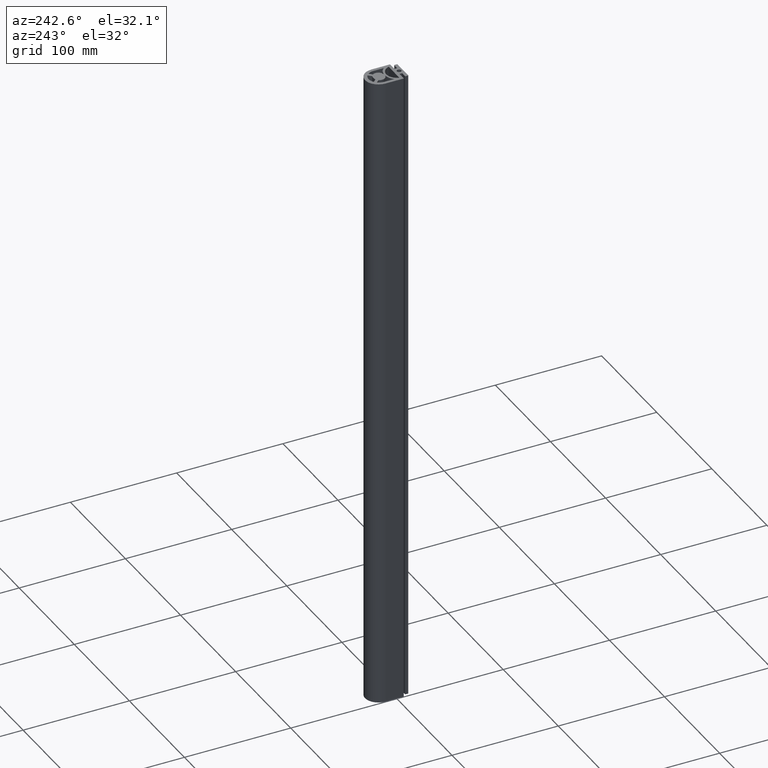
[diagram: clean part render]
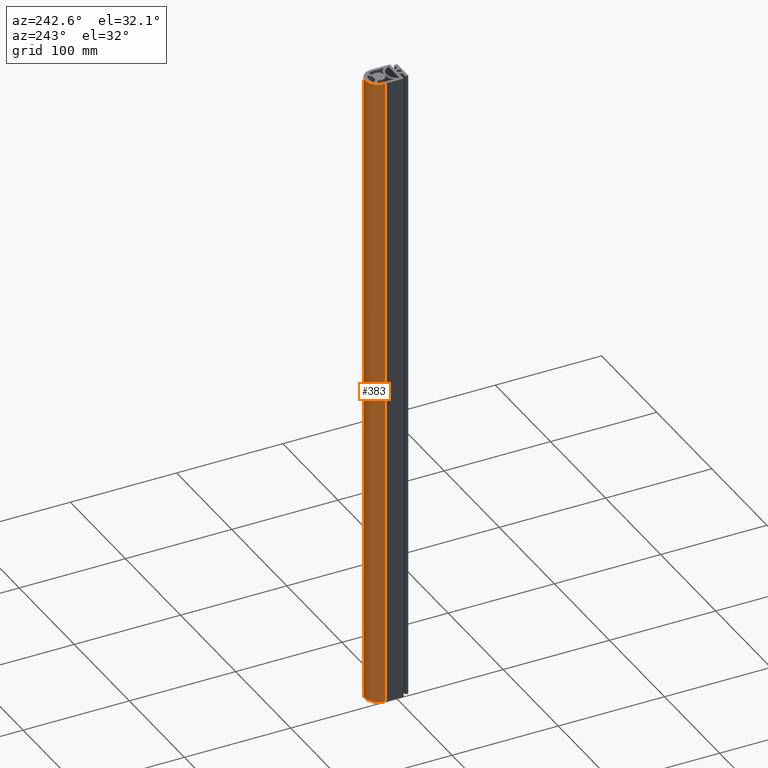
[diagram: same view with one face highlighted and labeled with its STEP entity id]
A machine part, auxiliary view. The second image highlights one B-rep face of the part: STEP entity #383.
In plain terms, the highlighted cylindrical surface (edge-blend (fillet) strip) has radius 12.5 mm, axis along (0, 0, 1).
Its self-contained STEP definition (entity closure, byte-faithful):
#2 = CARTESIAN_POINT ( 'NONE',  ( 12.50000000200000200, 17.49999999845801200, 509.6000000000000800 ) ) ;
#183 = CARTESIAN_POINT ( 'NONE',  ( -12.49999999800000000, 17.49999999845801200, -99.99999999999997200 ) ) ;
#330 = VECTOR ( 'NONE', #1065, 1000.000000000000000 ) ;
#360 = AXIS2_PLACEMENT_3D ( 'NONE', #745, #1250, #1493 ) ;
#381 = CARTESIAN_POINT ( 'NONE',  ( 1.999999992008394400E-009, 17.49999999845801200, -99.99999999999997200 ) ) ;
#383 = ADVANCED_FACE ( 'NONE', ( #1063 ), #570, .T. ) ;
#394 = AXIS2_PLACEMENT_3D ( 'NONE', #1575, #948, #1205 ) ;
#497 = AXIS2_PLACEMENT_3D ( 'NONE', #381, #1497, #1622 ) ;
#566 = CIRCLE ( 'NONE', #360, 12.50000000000000000 ) ;
#570 = CYLINDRICAL_SURFACE ( 'NONE', #394, 12.50000000000000000 ) ;
#573 = VERTEX_POINT ( 'NONE', #629 ) ;
#581 = ORIENTED_EDGE ( 'NONE', *, *, #1007, .F. ) ;
#614 = EDGE_CURVE ( 'NONE', #1425, #634, #566, .T. ) ;
#629 = CARTESIAN_POINT ( 'NONE',  ( 12.50000000200000200, 17.49999999845801200, -99.99999999999997200 ) ) ;
#634 = VERTEX_POINT ( 'NONE', #874 ) ;
#745 = CARTESIAN_POINT ( 'NONE',  ( 1.999999992008394400E-009, 17.49999999845801200, 509.6000000000000800 ) ) ;
#874 = CARTESIAN_POINT ( 'NONE',  ( -12.49999999800000000, 17.49999999845801200, 509.6000000000000800 ) ) ;
#927 = LINE ( 'NONE', #1445, #330 ) ;
#948 = DIRECTION ( 'NONE',  ( 0.0000000000000000000, 0.0000000000000000000, 1.000000000000000000 ) ) ;
#1007 = EDGE_CURVE ( 'NONE', #573, #1425, #1096, .T. ) ;
#1063 = FACE_OUTER_BOUND ( 'NONE', #1102, .T. ) ;
#1065 = DIRECTION ( 'NONE',  ( 0.0000000000000000000, 0.0000000000000000000, 1.000000000000000000 ) ) ;
#1075 = VERTEX_POINT ( 'NONE', #183 ) ;
#1096 = LINE ( 'NONE', #1548, #1571 ) ;
#1102 = EDGE_LOOP ( 'NONE', ( #1278, #581, #1294, #1120 ) ) ;
#1119 = EDGE_CURVE ( 'NONE', #1075, #634, #927, .T. ) ;
#1120 = ORIENTED_EDGE ( 'NONE', *, *, #1119, .T. ) ;
#1173 = DIRECTION ( 'NONE',  ( 0.0000000000000000000, 0.0000000000000000000, 1.000000000000000000 ) ) ;
#1205 = DIRECTION ( 'NONE',  ( 1.000000000000000000, 0.0000000000000000000, 0.0000000000000000000 ) ) ;
#1250 = DIRECTION ( 'NONE',  ( 0.0000000000000000000, 0.0000000000000000000, 1.000000000000000000 ) ) ;
#1278 = ORIENTED_EDGE ( 'NONE', *, *, #614, .F. ) ;
#1294 = ORIENTED_EDGE ( 'NONE', *, *, #1417, .T. ) ;
#1417 = EDGE_CURVE ( 'NONE', #573, #1075, #1449, .T. ) ;
#1425 = VERTEX_POINT ( 'NONE', #2 ) ;
#1445 = CARTESIAN_POINT ( 'NONE',  ( -12.49999999800000000, 17.49999999845801200, -99.99999999999997200 ) ) ;
#1449 = CIRCLE ( 'NONE', #497, 12.50000000000000000 ) ;
#1493 = DIRECTION ( 'NONE',  ( 1.000000000000000000, 0.0000000000000000000, 0.0000000000000000000 ) ) ;
#1497 = DIRECTION ( 'NONE',  ( 0.0000000000000000000, 0.0000000000000000000, 1.000000000000000000 ) ) ;
#1548 = CARTESIAN_POINT ( 'NONE',  ( 12.50000000200000200, 17.49999999845801200, -99.99999999999997200 ) ) ;
#1571 = VECTOR ( 'NONE', #1173, 1000.000000000000000 ) ;
#1575 = CARTESIAN_POINT ( 'NONE',  ( 1.999999992008394400E-009, 17.49999999845801200, -99.99999999999997200 ) ) ;
#1622 = DIRECTION ( 'NONE',  ( 1.000000000000000000, 0.0000000000000000000, 0.0000000000000000000 ) ) ;